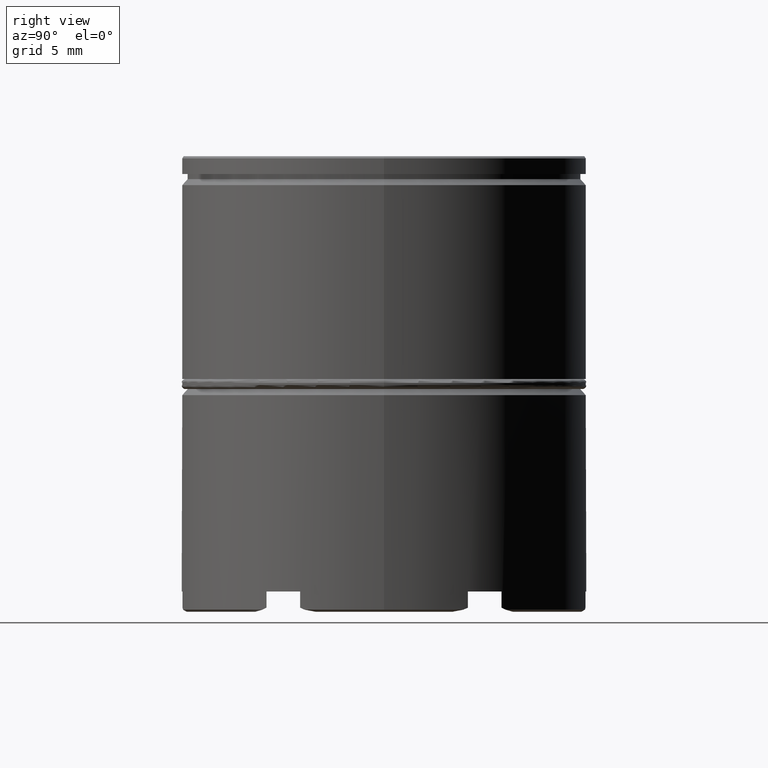
[diagram: clean part render]
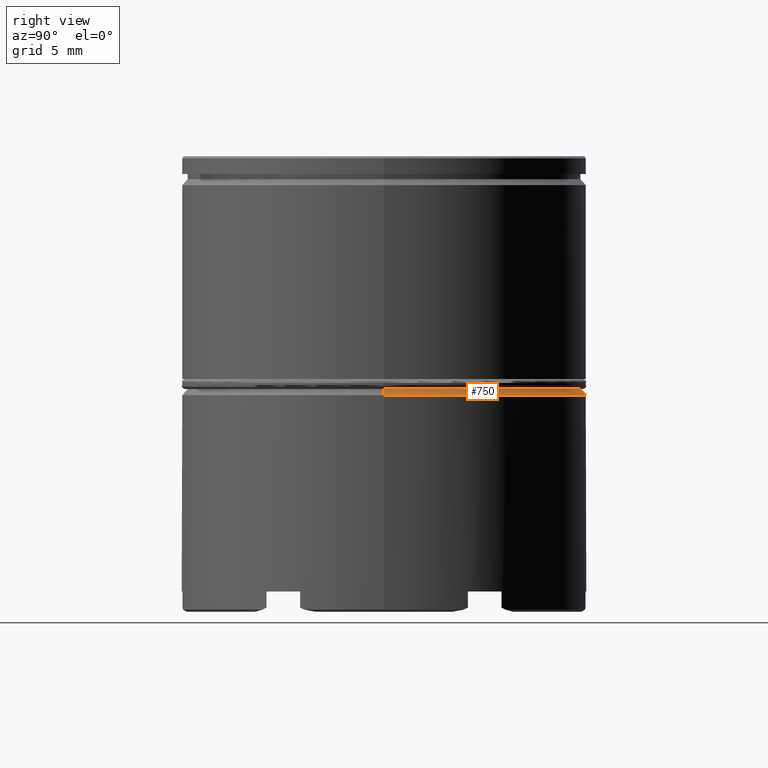
[diagram: same view with one face highlighted and labeled with its STEP entity id]
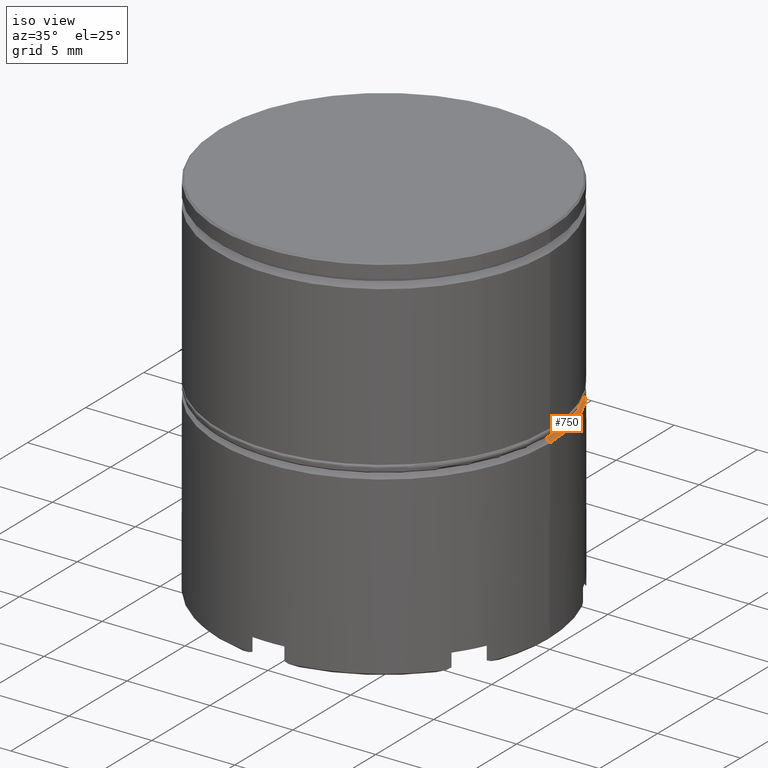
[diagram: same view with one face highlighted and labeled with its STEP entity id]
A machine part, right view. The second image highlights one B-rep face of the part: STEP entity #750.
A second angle (iso view) of the same face is appended — the face is thin or edge-on in the first view.
In plain terms, the highlighted conical surface has half-angle 45 deg.
Its self-contained STEP definition (entity closure, byte-faithful):
#90 = AXIS2_PLACEMENT_3D ( 'NONE', #1606, #437, #1580 ) ;
#128 = DIRECTION ( 'NONE',  ( -1.000000000000000000, 0.000000000000000000, 0.000000000000000000 ) ) ;
#138 = DIRECTION ( 'NONE',  ( -0.7071067811865454633, 0.000000000000000000, -0.7071067811865495711 ) ) ;
#201 = CARTESIAN_POINT ( 'NONE',  ( -10.00000000000000000, 1.224646799147353256E-15, -11.80000000000000071 ) ) ;
#212 = CIRCLE ( 'NONE', #90, 9.700000000000001066 ) ;
#216 = CARTESIAN_POINT ( 'NONE',  ( 9.700000000000001066, 1.187907395172932594E-15, -11.50000000000000000 ) ) ;
#253 = DIRECTION ( 'NONE',  ( 0.7071067811865454633, 8.659560562354906974E-17, -0.7071067811865495711 ) ) ;
#257 = CARTESIAN_POINT ( 'NONE',  ( -9.700000000000001066, 0.000000000000000000, -11.50000000000000000 ) ) ;
#279 = FACE_OUTER_BOUND ( 'NONE', #485, .T. ) ;
#343 = CARTESIAN_POINT ( 'NONE',  ( 0.000000000000000000, 0.000000000000000000, -11.80000000000000071 ) ) ;
#375 = CONICAL_SURFACE ( 'NONE', #995, 9.700000000000001066, 0.7853981633974453924 ) ;
#437 = DIRECTION ( 'NONE',  ( -0.000000000000000000, -0.000000000000000000, 1.000000000000000000 ) ) ;
#485 = EDGE_LOOP ( 'NONE', ( #1308, #858, #1022, #1540 ) ) ;
#513 = DIRECTION ( 'NONE',  ( 0.000000000000000000, 0.000000000000000000, -1.000000000000000000 ) ) ;
#584 = VECTOR ( 'NONE', #138, 1000.000000000000227 ) ;
#592 = EDGE_CURVE ( 'NONE', #1526, #870, #1255, .T. ) ;
#607 = VERTEX_POINT ( 'NONE', #769 ) ;
#709 = EDGE_CURVE ( 'NONE', #1117, #1526, #1560, .T. ) ;
#750 = ADVANCED_FACE ( 'NONE', ( #279 ), #375, .T. ) ;
#769 = CARTESIAN_POINT ( 'NONE',  ( 9.700000000000001066, 0.000000000000000000, -11.50000000000000000 ) ) ;
#815 = CARTESIAN_POINT ( 'NONE',  ( 0.000000000000000000, 0.000000000000000000, -11.50000000000000000 ) ) ;
#844 = VECTOR ( 'NONE', #253, 1000.000000000000227 ) ;
#858 = ORIENTED_EDGE ( 'NONE', *, *, #1195, .T. ) ;
#870 = VERTEX_POINT ( 'NONE', #1450 ) ;
#995 = AXIS2_PLACEMENT_3D ( 'NONE', #815, #513, #128 ) ;
#1015 = LINE ( 'NONE', #216, #844 ) ;
#1022 = ORIENTED_EDGE ( 'NONE', *, *, #592, .F. ) ;
#1074 = EDGE_CURVE ( 'NONE', #607, #1117, #212, .T. ) ;
#1108 = CARTESIAN_POINT ( 'NONE',  ( -9.700000000000001066, 1.187907395172932594E-15, -11.50000000000000000 ) ) ;
#1117 = VERTEX_POINT ( 'NONE', #1108 ) ;
#1130 = AXIS2_PLACEMENT_3D ( 'NONE', #343, #1367, #1393 ) ;
#1195 = EDGE_CURVE ( 'NONE', #607, #870, #1015, .T. ) ;
#1255 = CIRCLE ( 'NONE', #1130, 10.00000000000000000 ) ;
#1308 = ORIENTED_EDGE ( 'NONE', *, *, #1074, .F. ) ;
#1367 = DIRECTION ( 'NONE',  ( 0.000000000000000000, 0.000000000000000000, -1.000000000000000000 ) ) ;
#1393 = DIRECTION ( 'NONE',  ( 1.000000000000000000, 0.000000000000000000, 0.000000000000000000 ) ) ;
#1450 = CARTESIAN_POINT ( 'NONE',  ( 10.00000000000000000, 0.000000000000000000, -11.80000000000000071 ) ) ;
#1526 = VERTEX_POINT ( 'NONE', #201 ) ;
#1540 = ORIENTED_EDGE ( 'NONE', *, *, #709, .F. ) ;
#1560 = LINE ( 'NONE', #257, #584 ) ;
#1580 = DIRECTION ( 'NONE',  ( 1.000000000000000000, 0.000000000000000000, 0.000000000000000000 ) ) ;
#1606 = CARTESIAN_POINT ( 'NONE',  ( 0.000000000000000000, 0.000000000000000000, -11.50000000000000000 ) ) ;